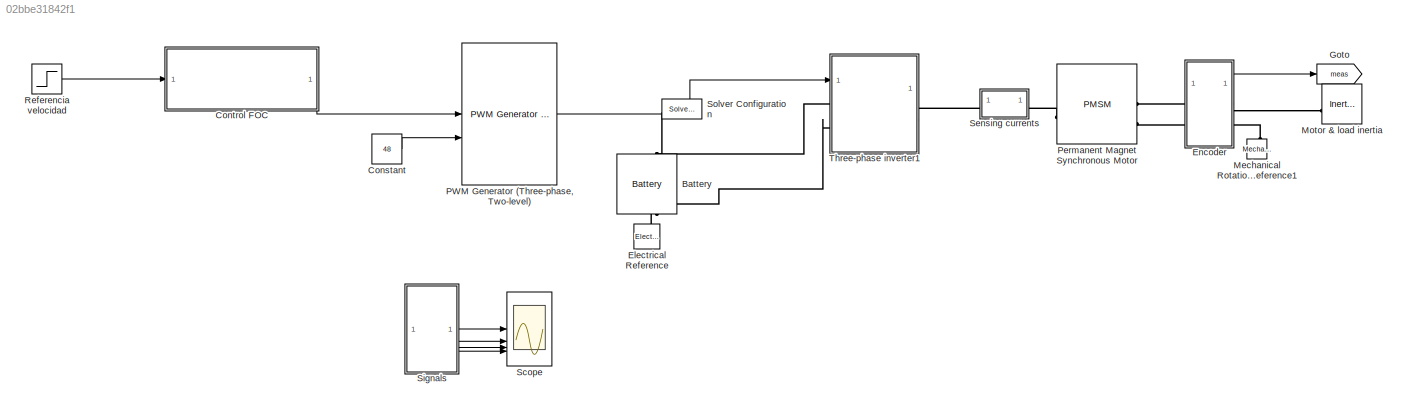
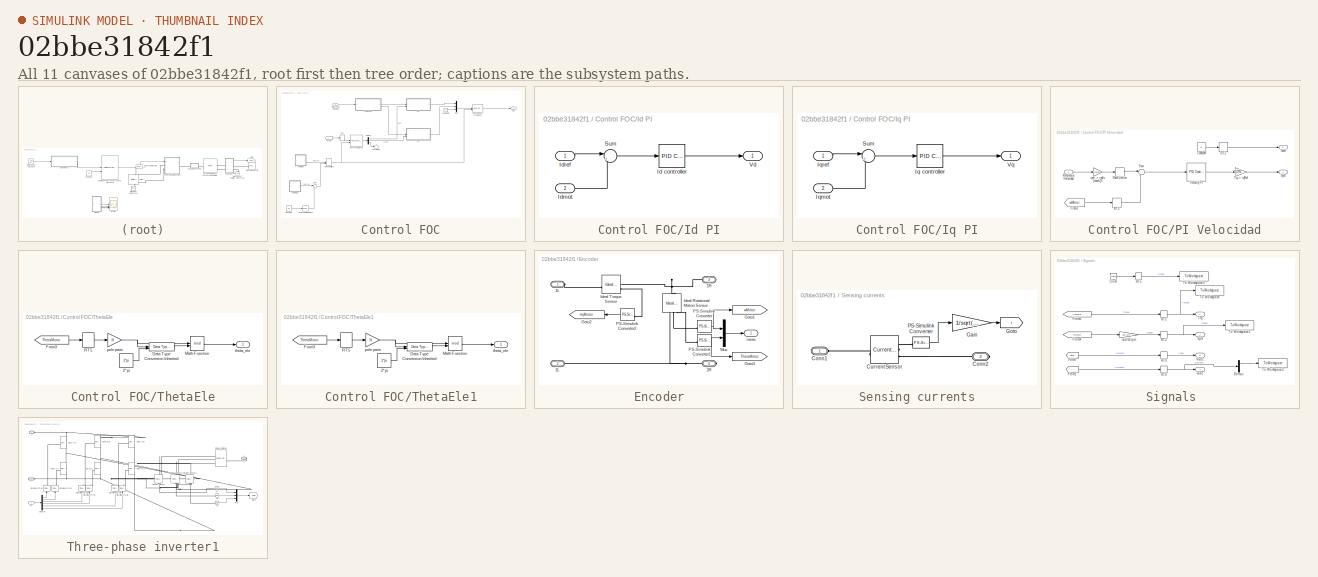
[diagram: thumbnail index - all 11 canvases of the model, root first then tree order]
MODEL slx_02bbe31842f1
KIND model
CONFIG AbsTol = 1e-3
CONFIG EnableMultiTasking = on
CONFIG FixedStep = Ts
CONFIG MaxStep = 1e-5
CONFIG MinStep = auto
CONFIG PreLoadFcn = % PMSM parameters \nPM = 0.03; % Permanent magnet flux linkage\nLd = 2e-4;  % d-axis inductance\nLq = 2e-4;  % q-axis inductance\nL0 = 2e-4;  % 0-axis inductance\nRs = 0.013; % Stator resistance\nN = 6; % Number of pole pairs\nJ = 0.2; % Moment of inertia\n\n% Operating and derived limits\nImax = 100;  % Max stator current (peak value)\nTmax = 1.5*N*PM*Imax; % Max lectromagnetic torque\nfnom = 100;  % Nominal...<+172ch>
CONFIG RelTol = 1e-3
CONFIG SampleTimeConstraint = Unconstrained
CONFIG SolverName = VariableStepAuto
CONFIG StartTime = 0.0
CONFIG StopFcn = ee_addSimlogTimeStamp(bdroot)
CONFIG StopTime = 0.7
BLOCK [Reference] Battery  REF=batteryecm_lib/Battery
  NameLocation = right
  SourceBlock = batteryecm_lib/Battery
  SourceType = Battery
BLOCK [Constant] Constant
  Value = 48
BLOCK [SubSystem] Control FOC
BLOCK [Constant] Control FOC/Constant
  Value = 89
BLOCK [Constant] Control FOC/Constant1
  SampleTime = Tcurr
  Value = 0
BLOCK [Reference] Control FOC/Degrees to Radians  REF=simulink_extras/Transformations/Degrees to
Radians
  SourceBlock = simulink_extras/Transformations/Degrees to\nRadians
  SourceType = DegreesToRadians
BLOCK [Demux] Control FOC/Demux
  Outputs = 3
BLOCK [From] Control FOC/From2
  GotoTag = i
  TagVisibility = global
BLOCK [SubSystem] Control FOC/Id PI
BLOCK [Reference] Control FOC/Id PI/Id controller  REF=slpidlib/PID Controller
  LibrarySourceBlock = simulink/Continuous/PID Controller
  SourceBlock = slpidlib/PID Controller
  SourceType = PID 1dof
BLOCK [Inport] Control FOC/Id PI/Idmot
  Port = 2
BLOCK [Inport] Control FOC/Id PI/Idref
BLOCK [Sum] Control FOC/Id PI/Sum
  Inputs = |+-
BLOCK [Outport] Control FOC/Id PI/Vd
BLOCK [Reference] Control FOC/Inverse Park Transform  REF=eeTransforms/Inverse
Park Transform
  SourceBlock = eeTransforms/Inverse\nPark Transform
  SourceType = Inverse Park Transform
BLOCK [SubSystem] Control FOC/Iq PI
BLOCK [Reference] Control FOC/Iq PI/Iq controller  REF=slpidlib/PID Controller
  LibrarySourceBlock = simulink/Continuous/PID Controller
  SourceBlock = slpidlib/PID Controller
  SourceType = PID 1dof
BLOCK [Inport] Control FOC/Iq PI/Iqmot
  Port = 2
BLOCK [Inport] Control FOC/Iq PI/Iqref
BLOCK [Sum] Control FOC/Iq PI/Sum
  Inputs = |+-
BLOCK [Outport] Control FOC/Iq PI/Vq
BLOCK [ManualSwitch] Control FOC/Manual Switch
BLOCK [Mux] Control FOC/Mux
  DisplayOption = bar
  Inputs = 3
BLOCK [SubSystem] Control FOC/PI Velocidad
BLOCK [Constant] Control FOC/PI Velocidad/Constant
  Value = 0
BLOCK [From] Control FOC/PI Velocidad/From2
  GotoTag = wMotor
  TagVisibility = global
BLOCK [Outport] Control FOC/PI Velocidad/Idref
BLOCK [Outport] Control FOC/PI Velocidad/Iqref
  Port = 2
BLOCK [RateTransition] Control FOC/PI Velocidad/RT2
  NameLocation = top
  OutPortSampleTime = Tspeed
BLOCK [RateTransition] Control FOC/PI Velocidad/RT3
  NameLocation = top
  OutPortSampleTime = Tspeed
BLOCK [RateLimiter] Control FOC/PI Velocidad/Rate Limiter
  FallingSlewLimit = -Tmax/J
  NameLocation = top
  RisingSlewLimit = Tmax/J
  SampleTimeMode = inherited
BLOCK [Inport] Control FOC/PI Velocidad/Referencia Velocidad
BLOCK [Sum] Control FOC/PI Velocidad/Sum
  Inputs = |+-
BLOCK [Gain] Control FOC/PI Velocidad/Tq--> iqRef
  Gain = 2/(3*N*PM)
BLOCK [Reference] Control FOC/PI Velocidad/Velocity PI  REF=slpidlib/PID Controller
  LibrarySourceBlock = simulink/Continuous/PID Controller
  SourceBlock = slpidlib/PID Controller
  SourceType = PID 1dof
BLOCK [Gain] Control FOC/PI Velocidad/rpm -> rad//s [mech.]1
  Gain = 2*pi/60
  NameLocation = top
BLOCK [Reference] Control FOC/Park Transform1  REF=eeTransforms/Park Transform
  LibrarySourceBlock = ee_sl_lib/Mathematical\nTransforms/Park Transform
  SourceBlock = eeTransforms/Park Transform
  SourceType = Park Transform
BLOCK [RateTransition] Control FOC/RT4
  NameLocation = top
  OutPortSampleTime = Tspeed
BLOCK [Inport] Control FOC/Referencia Velocidad
BLOCK [Sum] Control FOC/Sum
  Inputs = |++
BLOCK [Terminator] Control FOC/Terminator
BLOCK [SubSystem] Control FOC/ThetaEle
BLOCK [Constant] Control FOC/ThetaEle/2*pi
  OutDataTypeStr = Inherit: Inherit via back propagation
  SampleTime = 2e-4
  Value = 2*pi
BLOCK [Reference] Control FOC/ThetaEle/Data Type Conversion Inherited  REF=simulink/Signal
Attributes/Data Type
Conversion
Inherited
  SourceBlock = simulink/Signal\nAttributes/Data Type\nConversion\nInherited
  SourceType = Conversion Inherited
BLOCK [From] Control FOC/ThetaEle/From3
  GotoTag = ThetaMotor
  TagVisibility = global
BLOCK [Math] Control FOC/ThetaEle/Math Function
  Operator = mod
  SignedPower = on
BLOCK [RateTransition] Control FOC/ThetaEle/RT5
  NameLocation = top
  OutPortSampleTime = Tspeed
BLOCK [Gain] Control FOC/ThetaEle/pole pairs 
  Gain = N
BLOCK [Outport] Control FOC/ThetaEle/theta_ele
  VectorParamsAs1DForOutWhenUnconnected = off
BLOCK [SubSystem] Control FOC/ThetaEle1
BLOCK [Constant] Control FOC/ThetaEle1/2*pi
  OutDataTypeStr = Inherit: Inherit via back propagation
  SampleTime = 2e-4
  Value = 2*pi
BLOCK [Reference] Control FOC/ThetaEle1/Data Type Conversion Inherited  REF=simulink/Signal
Attributes/Data Type
Conversion
Inherited
  SourceBlock = simulink/Signal\nAttributes/Data Type\nConversion\nInherited
  SourceType = Conversion Inherited
BLOCK [From] Control FOC/ThetaEle1/From3
  GotoTag = ThetaMotor
  TagVisibility = global
BLOCK [Math] Control FOC/ThetaEle1/Math Function
  Operator = mod
  SignedPower = on
BLOCK [RateTransition] Control FOC/ThetaEle1/RT5
  NameLocation = top
  OutPortSampleTime = Tspeed
BLOCK [Gain] Control FOC/ThetaEle1/pole pairs 
  Gain = N
BLOCK [Outport] Control FOC/ThetaEle1/theta_ele
  VectorParamsAs1DForOutWhenUnconnected = off
BLOCK [Outport] Control FOC/abc
BLOCK [Reference] Electrical Reference  REF=fl_lib/Electrical/Electrical Elements/Electrical Reference
  NameLocation = right
  SourceBlock = fl_lib/Electrical/Electrical Elements/Electrical Reference
  SourceType = Electrical Reference
BLOCK [SubSystem] Encoder
BLOCK [PMIOPort] Encoder/1L
  Side = Left
BLOCK [PMIOPort] Encoder/1R
  Port = 3
  Side = Right
BLOCK [PMIOPort] Encoder/2L
  Port = 2
  Side = Left
BLOCK [PMIOPort] Encoder/2R
  Port = 4
  Side = Right
BLOCK [Goto] Encoder/Goto1
  GotoTag = wMotor
  NameLocation = top
  TagVisibility = global
BLOCK [Goto] Encoder/Goto2
  GotoTag = trqMotor
  TagVisibility = global
BLOCK [Goto] Encoder/Goto3
  GotoTag = ThetaMotor
  NameLocation = top
  TagVisibility = global
BLOCK [Reference] Encoder/Ideal Rotational Motion Sensor  REF=fl_lib/Mechanical/Mechanical Sensors/Ideal Rotational
Motion Sensor
  NameLocation = right
  SourceBlock = fl_lib/Mechanical/Mechanical Sensors/Ideal Rotational\nMotion Sensor
  SourceType = Ideal Rotational\nMotion Sensor
BLOCK [Reference] Encoder/Ideal Torque Sensor  REF=fl_lib/Mechanical/Mechanical Sensors/Ideal Torque Sensor
  SourceBlock = fl_lib/Mechanical/Mechanical Sensors/Ideal Torque Sensor
  SourceType = Ideal Torque Sensor
BLOCK [Mux] Encoder/Mux
  DisplayOption = bar
  Inputs = 2
BLOCK [Reference] Encoder/PS-Simulink Converter  REF=nesl_utility/PS-Simulink
Converter
  SourceBlock = nesl_utility/PS-Simulink\nConverter
  SourceType = PS-Simulink\nConverter
BLOCK [Reference] Encoder/PS-Simulink Converter1  REF=nesl_utility/PS-Simulink
Converter
  SourceBlock = nesl_utility/PS-Simulink\nConverter
  SourceType = PS-Simulink\nConverter
BLOCK [Reference] Encoder/PS-Simulink Converter2  REF=nesl_utility/PS-Simulink
Converter
  NameLocation = top
  SourceBlock = nesl_utility/PS-Simulink\nConverter
  SourceType = PS-Simulink\nConverter
BLOCK [Outport] Encoder/meas
  VectorParamsAs1DForOutWhenUnconnected = off
BLOCK [Goto] Goto
  GotoTag = meas
  TagVisibility = global
BLOCK [Reference] Mechanical Rotational Reference1  REF=fl_lib/Mechanical/Rotational Elements/Mechanical
Rotational Reference
  NameLocation = right
  SourceBlock = fl_lib/Mechanical/Rotational Elements/Mechanical\nRotational Reference
  SourceType = Mechanical\nRotational Reference
BLOCK [Reference] Motor & load inertia  REF=fl_lib/Mechanical/Rotational Elements/Inertia
  SourceBlock = fl_lib/Mechanical/Rotational Elements/Inertia
  SourceType = Inertia
BLOCK [Reference] PWM Generator (Three-phase, Two-level)  REF=eePwmGeneratorTwoLevel/PWM Generator
(Three-phase, Two-level)
  LibrarySourceBlock = eePmsmFieldOrientedControl/PMSM Field-Oriented\nControl/PWM/PWM Generator\n(Three-phase, Two-level)
  SourceBlock = eePwmGeneratorTwoLevel/PWM Generator\n(Three-phase, Two-level)
  SourceType = PWM Generator (three-phase, two-level)
BLOCK [Reference] Permanent Magnet Synchronous Motor  REF=ee_lib/Electromechanical/Permanent Magnet/PMSM
  SourceBlock = ee_lib/Electromechanical/Permanent Magnet/PMSM
  SourceType = PMSM
BLOCK [Step] Referencia velocidad
  After = Refvel
  SampleTime = Tspeed
  Time = 0.1
BLOCK [Scope] Scope
  Floating = off
  NumInputPorts = 4
  ScopeSpecificationString = Simulink.scopes.TimeScopeBlockCfg('CurrentConfiguration', extmgr.ConfigurationSet(extmgr.Configuration('Core','General UI',true),extmgr.Configuration('Core','Source UI',true),extmgr.Configuration('Sources','WiredSimulink',true),extmgr.Configuration('Visuals','Time Domain',true,'SerializedDisplays',{struct('MinYLimReal','-19.78525','MaxYLimReal','130.89708','YLabelReal','','MinYLimMag','0.00000','M...<+3743ch>
BLOCK [SubSystem] Sensing currents
BLOCK [PMIOPort] Sensing currents/Conn1
  Side = Left
BLOCK [PMIOPort] Sensing currents/Conn2
  Port = 2
  Side = Right
BLOCK [Reference] Sensing currents/Current Sensor  REF=ee_lib/Sensors &
Transducers/Current Sensor
(Three-Phase)
  SourceBlock = ee_lib/Sensors &\nTransducers/Current Sensor\n(Three-Phase)
  SourceType = Current Sensor\n(Three-Phase)
BLOCK [Gain] Sensing currents/Gain
  Commented = through
  Gain = 1/sqrt(3)
BLOCK [Goto] Sensing currents/Goto
  GotoTag = i
  TagVisibility = global
BLOCK [Reference] Sensing currents/PS-Simulink Converter  REF=nesl_utility/PS-Simulink
Converter
  SourceBlock = nesl_utility/PS-Simulink\nConverter
  SourceType = PS-Simulink\nConverter
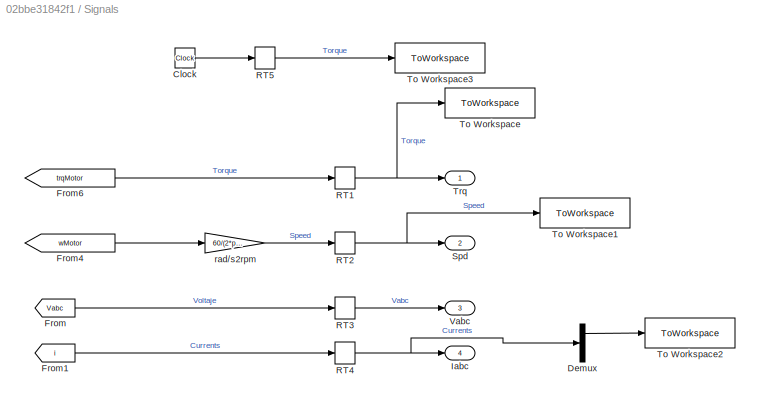
BLOCK [SubSystem] Signals 
BLOCK [Clock] Signals /Clock
  Decimation = 3
BLOCK [Demux] Signals /Demux
  Outputs = 3
BLOCK [From] Signals /From
  GotoTag = Vabc
  TagVisibility = global
BLOCK [From] Signals /From1
  GotoTag = i
  TagVisibility = global
BLOCK [From] Signals /From4
  GotoTag = wMotor
  TagVisibility = global
BLOCK [From] Signals /From6
  GotoTag = trqMotor
  TagVisibility = global
BLOCK [Outport] Signals /Iabc
  Port = 4
  VectorParamsAs1DForOutWhenUnconnected = off
BLOCK [RateTransition] Signals /RT1
  OutPortSampleTime = Ts
BLOCK [RateTransition] Signals /RT2
  OutPortSampleTime = Ts
BLOCK [RateTransition] Signals /RT3
  OutPortSampleTime = Ts
BLOCK [RateTransition] Signals /RT4
  OutPortSampleTime = Ts
BLOCK [RateTransition] Signals /RT5
  OutPortSampleTime = Ts
BLOCK [Outport] Signals /Spd
  Port = 2
  VectorParamsAs1DForOutWhenUnconnected = off
BLOCK [ToWorkspace] Signals /To Workspace
  Decimation = 3
  FixptAsFi = on
  MaxDataPoints = inf
  SampleTime = -1
  VariableName = Par
BLOCK [ToWorkspace] Signals /To Workspace1
  Decimation = 3
  FixptAsFi = on
  MaxDataPoints = inf
  SampleTime = -1
  VariableName = Velocidad
BLOCK [ToWorkspace] Signals /To Workspace2
  Decimation = 3
  FixptAsFi = on
  MaxDataPoints = inf
  SampleTime = -1
  VariableName = Ia
BLOCK [ToWorkspace] Signals /To Workspace3
  Decimation = 3
  FixptAsFi = on
  MaxDataPoints = inf
  SampleTime = -1
  VariableName = Time
BLOCK [Outport] Signals /Trq
  VectorParamsAs1DForOutWhenUnconnected = off
BLOCK [Outport] Signals /Vabc
  Port = 3
  VectorParamsAs1DForOutWhenUnconnected = off
BLOCK [Gain] Signals /rad//s2rpm
  Gain = 60/(2*pi)
BLOCK [Reference] Solver Configuration  REF=nesl_utility/Solver
Configuration
  SourceBlock = nesl_utility/Solver\nConfiguration
  SourceType = Solver\nConfiguration
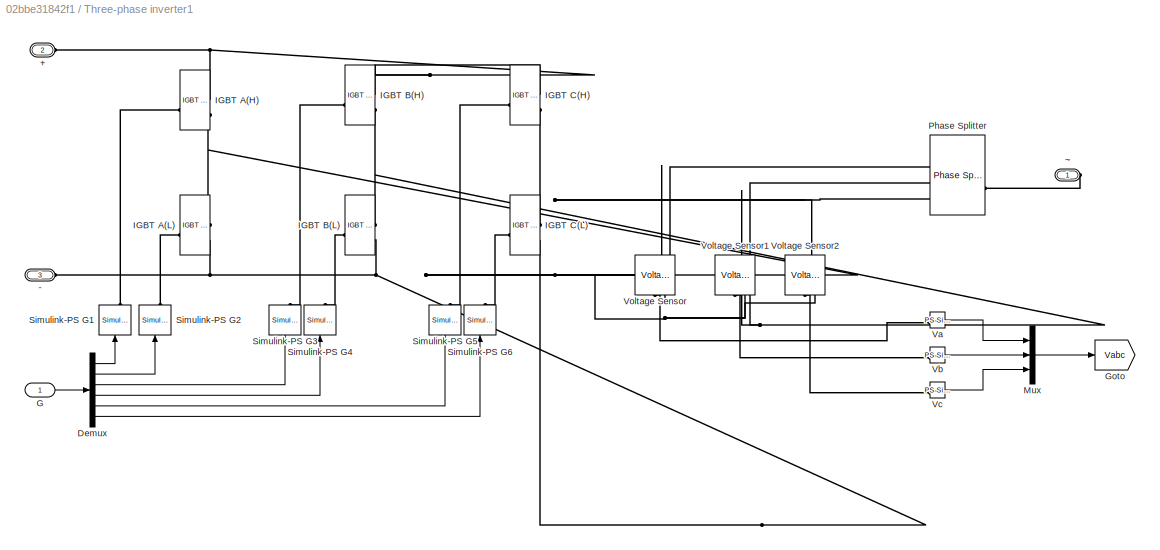
BLOCK [SubSystem] Three-phase inverter1
BLOCK [PMIOPort] Three-phase inverter1/+
  Port = 2
  Side = Left
  Tag = PMCPort
BLOCK [PMIOPort] Three-phase inverter1/-
  Port = 3
  Side = Left
  Tag = PMCPort
BLOCK [Demux] Three-phase inverter1/Demux
  Outputs = 6
BLOCK [Inport] Three-phase inverter1/G
BLOCK [Goto] Three-phase inverter1/Goto
  GotoTag = Vabc
  TagVisibility = global
BLOCK [Reference] Three-phase inverter1/IGBT A(H)  REF=ee_lib/Semiconductors &
Converters/IGBT
(Ideal,
Switching)
  SourceBlock = ee_lib/Semiconductors &\nConverters/IGBT\n(Ideal,\nSwitching)
  SourceType = IGBT\n(Ideal,\nSwitching)
BLOCK [Reference] Three-phase inverter1/IGBT A(L)  REF=ee_lib/Semiconductors &
Converters/IGBT
(Ideal,
Switching)
  SourceBlock = ee_lib/Semiconductors &\nConverters/IGBT\n(Ideal,\nSwitching)
  SourceType = IGBT\n(Ideal,\nSwitching)
BLOCK [Reference] Three-phase inverter1/IGBT B(H)  REF=ee_lib/Semiconductors &
Converters/IGBT
(Ideal,
Switching)
  SourceBlock = ee_lib/Semiconductors &\nConverters/IGBT\n(Ideal,\nSwitching)
  SourceType = IGBT\n(Ideal,\nSwitching)
BLOCK [Reference] Three-phase inverter1/IGBT B(L)  REF=ee_lib/Semiconductors &
Converters/IGBT
(Ideal,
Switching)
  SourceBlock = ee_lib/Semiconductors &\nConverters/IGBT\n(Ideal,\nSwitching)
  SourceType = IGBT\n(Ideal,\nSwitching)
BLOCK [Reference] Three-phase inverter1/IGBT C(H)  REF=ee_lib/Semiconductors &
Converters/IGBT
(Ideal,
Switching)
  SourceBlock = ee_lib/Semiconductors &\nConverters/IGBT\n(Ideal,\nSwitching)
  SourceType = IGBT\n(Ideal,\nSwitching)
BLOCK [Reference] Three-phase inverter1/IGBT C(L)  REF=ee_lib/Semiconductors &
Converters/IGBT
(Ideal,
Switching)
  SourceBlock = ee_lib/Semiconductors &\nConverters/IGBT\n(Ideal,\nSwitching)
  SourceType = IGBT\n(Ideal,\nSwitching)
BLOCK [Mux] Three-phase inverter1/Mux
  DisplayOption = bar
  Inputs = 3
BLOCK [Reference] Three-phase inverter1/Phase Splitter  REF=ee_lib/Connectors &
References/Phase Splitter
  SourceBlock = ee_lib/Connectors &\nReferences/Phase Splitter
  SourceType = Phase Splitter
BLOCK [Reference] Three-phase inverter1/Simulink-PS G1  REF=nesl_utility/Simulink-PS
Converter
  NameLocation = right
  SourceBlock = nesl_utility/Simulink-PS\nConverter
  SourceType = Simulink-PS\nConverter
BLOCK [Reference] Three-phase inverter1/Simulink-PS G2  REF=nesl_utility/Simulink-PS
Converter
  NameLocation = right
  SourceBlock = nesl_utility/Simulink-PS\nConverter
  SourceType = Simulink-PS\nConverter
BLOCK [Reference] Three-phase inverter1/Simulink-PS G3  REF=nesl_utility/Simulink-PS
Converter
  NameLocation = left
  SourceBlock = nesl_utility/Simulink-PS\nConverter
  SourceType = Simulink-PS\nConverter
BLOCK [Reference] Three-phase inverter1/Simulink-PS G4  REF=nesl_utility/Simulink-PS
Converter
  NameLocation = right
  SourceBlock = nesl_utility/Simulink-PS\nConverter
  SourceType = Simulink-PS\nConverter
BLOCK [Reference] Three-phase inverter1/Simulink-PS G5  REF=nesl_utility/Simulink-PS
Converter
  NameLocation = right
  SourceBlock = nesl_utility/Simulink-PS\nConverter
  SourceType = Simulink-PS\nConverter
BLOCK [Reference] Three-phase inverter1/Simulink-PS G6  REF=nesl_utility/Simulink-PS
Converter
  NameLocation = right
  SourceBlock = nesl_utility/Simulink-PS\nConverter
  SourceType = Simulink-PS\nConverter
BLOCK [Reference] Three-phase inverter1/Va  REF=nesl_utility/PS-Simulink
Converter
  SourceBlock = nesl_utility/PS-Simulink\nConverter
  SourceType = PS-Simulink\nConverter
BLOCK [Reference] Three-phase inverter1/Vb  REF=nesl_utility/PS-Simulink
Converter
  SourceBlock = nesl_utility/PS-Simulink\nConverter
  SourceType = PS-Simulink\nConverter
BLOCK [Reference] Three-phase inverter1/Vc  REF=nesl_utility/PS-Simulink
Converter
  SourceBlock = nesl_utility/PS-Simulink\nConverter
  SourceType = PS-Simulink\nConverter
BLOCK [Reference] Three-phase inverter1/Voltage Sensor  REF=fl_lib/Electrical/Electrical Sensors/Voltage Sensor
  NameLocation = right
  SourceBlock = fl_lib/Electrical/Electrical Sensors/Voltage Sensor
  SourceType = Voltage Sensor
BLOCK [Reference] Three-phase inverter1/Voltage Sensor1  REF=fl_lib/Electrical/Electrical Sensors/Voltage Sensor
  NameLocation = right
  SourceBlock = fl_lib/Electrical/Electrical Sensors/Voltage Sensor
  SourceType = Voltage Sensor
BLOCK [Reference] Three-phase inverter1/Voltage Sensor2  REF=fl_lib/Electrical/Electrical Sensors/Voltage Sensor
  NameLocation = right
  SourceBlock = fl_lib/Electrical/Electrical Sensors/Voltage Sensor
  SourceType = Voltage Sensor
BLOCK [PMIOPort] Three-phase inverter1/~
  Side = Right
  Tag = PMCPort
LINE Constant:1 -> PWM Generator (Three-phase, Two-level):2
LINE Control FOC/Constant1:1 -> Control FOC/Mux:3
LINE Control FOC/Constant:1 -> Control FOC/Degrees to Radians:1
LINE Control FOC/Degrees to Radians:1 -> Control FOC/Sum:2
LINE Control FOC/Demux:1 -> Control FOC/Id PI:2
LINE Control FOC/Demux:2 -> Control FOC/Iq PI:2
LINE Control FOC/Demux:3 -> Control FOC/Terminator:1
LINE Control FOC/From2:1 -> Control FOC/RT4:1
LINE Control FOC/Id PI/Id controller:1 -> Control FOC/Id PI/Vd:1
LINE Control FOC/Id PI/Idmot:1 -> Control FOC/Id PI/Sum:2
LINE Control FOC/Id PI/Idref:1 -> Control FOC/Id PI/Sum:1
LINE Control FOC/Id PI/Sum:1 -> Control FOC/Id PI/Id controller:1
LINE Control FOC/Id PI:1 -> Control FOC/Mux:1
LINE Control FOC/Inverse Park Transform:1 -> Control FOC/abc:1
LINE Control FOC/Iq PI/Iq controller:1 -> Control FOC/Iq PI/Vq:1
LINE Control FOC/Iq PI/Iqmot:1 -> Control FOC/Iq PI/Sum:2
LINE Control FOC/Iq PI/Iqref:1 -> Control FOC/Iq PI/Sum:1
LINE Control FOC/Iq PI/Sum:1 -> Control FOC/Iq PI/Iq controller:1
LINE Control FOC/Iq PI:1 -> Control FOC/Mux:2
NET Control FOC/Manual Switch:1 -> Control FOC/Inverse Park Transform:2, Control FOC/Park Transform1:2
LINE Control FOC/Mux:1 -> Control FOC/Inverse Park Transform:1
LINE Control FOC/PI Velocidad/Constant:1 -> Control FOC/PI Velocidad/RT2:1
LINE Control FOC/PI Velocidad/From2:1 -> Control FOC/PI Velocidad/RT3:1
LINE Control FOC/PI Velocidad/RT2:1 -> Control FOC/PI Velocidad/Idref:1
LINE Control FOC/PI Velocidad/RT3:1 -> Control FOC/PI Velocidad/Sum:2
LINE Control FOC/PI Velocidad/Rate Limiter:1 -> Control FOC/PI Velocidad/Sum:1
LINE Control FOC/PI Velocidad/Referencia Velocidad:1 -> Control FOC/PI Velocidad/rpm -> rad//s [mech.]1:1
LINE Control FOC/PI Velocidad/Sum:1 -> Control FOC/PI Velocidad/Velocity PI:1
LINE Control FOC/PI Velocidad/Tq--> iqRef:1 -> Control FOC/PI Velocidad/Iqref:1
LINE Control FOC/PI Velocidad/Velocity PI:1 -> Control FOC/PI Velocidad/Tq--> iqRef:1
LINE Control FOC/PI Velocidad/rpm -> rad//s [mech.]1:1 -> Control FOC/PI Velocidad/Rate Limiter:1
LINE Control FOC/PI Velocidad:1 -> Control FOC/Id PI:1
LINE Control FOC/PI Velocidad:2 -> Control FOC/Iq PI:1
LINE Control FOC/Park Transform1:1 -> Control FOC/Demux:1
LINE Control FOC/RT4:1 -> Control FOC/Park Transform1:1
LINE Control FOC/Referencia Velocidad:1 -> Control FOC/PI Velocidad:1
LINE Control FOC/Sum:1 -> Control FOC/Manual Switch:2
LINE Control FOC/ThetaEle/2*pi:1 -> Control FOC/ThetaEle/Data Type Conversion Inherited:2
LINE Control FOC/ThetaEle/Data Type Conversion Inherited:1 -> Control FOC/ThetaEle/Math Function:2
LINE Control FOC/ThetaEle/From3:1 -> Control FOC/ThetaEle/RT5:1
LINE Control FOC/ThetaEle/Math Function:1 -> Control FOC/ThetaEle/theta_ele:1
LINE Control FOC/ThetaEle/RT5:1 -> Control FOC/ThetaEle/pole pairs :1
NET Control FOC/ThetaEle/pole pairs :1 -> Control FOC/ThetaEle/Data Type Conversion Inherited:1, Control FOC/ThetaEle/Math Function:1
LINE Control FOC/ThetaEle1/2*pi:1 -> Control FOC/ThetaEle1/Data Type Conversion Inherited:2
LINE Control FOC/ThetaEle1/Data Type Conversion Inherited:1 -> Control FOC/ThetaEle1/Math Function:2
LINE Control FOC/ThetaEle1/From3:1 -> Control FOC/ThetaEle1/RT5:1
LINE Control FOC/ThetaEle1/Math Function:1 -> Control FOC/ThetaEle1/theta_ele:1
LINE Control FOC/ThetaEle1/RT5:1 -> Control FOC/ThetaEle1/pole pairs :1
NET Control FOC/ThetaEle1/pole pairs :1 -> Control FOC/ThetaEle1/Data Type Conversion Inherited:1, Control FOC/ThetaEle1/Math Function:1
LINE Control FOC/ThetaEle1:1 -> Control FOC/Sum:1
LINE Control FOC/ThetaEle:1 -> Control FOC/Manual Switch:1
LINE Control FOC:1 -> PWM Generator (Three-phase, Two-level):1
LINE Encoder/Mux:1 -> Encoder/meas:1
NET Encoder/PS-Simulink Converter1:1 -> Encoder/Goto3:1, Encoder/Mux:2
LINE Encoder/PS-Simulink Converter2:1 -> Encoder/Goto2:1
NET Encoder/PS-Simulink Converter:1 -> Encoder/Goto1:1, Encoder/Mux:1
LINE Encoder:1 -> Goto:1
LINE PWM Generator (Three-phase, Two-level):1 -> Three-phase inverter1:1
LINE Referencia velocidad:1 -> Control FOC:1
LINE Sensing currents/Gain:1 -> Sensing currents/Goto:1
LINE Sensing currents/PS-Simulink Converter:1 -> Sensing currents/Gain:1
LINE Signals /Clock:1 -> Signals /RT5:1
LINE Signals /Demux:1 -> Signals /To Workspace2:1
LINE Signals /From1:1 -> Signals /RT4:1
LINE Signals /From4:1 -> Signals /rad//s2rpm:1
LINE Signals /From6:1 -> Signals /RT1:1
LINE Signals /From:1 -> Signals /RT3:1
NET Signals /RT1:1 -> Signals /To Workspace:1, Signals /Trq:1
NET Signals /RT2:1 -> Signals /Spd:1, Signals /To Workspace1:1
LINE Signals /RT3:1 -> Signals /Vabc:1
NET Signals /RT4:1 -> Signals /Demux:1, Signals /Iabc:1
LINE Signals /RT5:1 -> Signals /To Workspace3:1
LINE Signals /rad//s2rpm:1 -> Signals /RT2:1
LINE Signals :1 -> Scope:1
LINE Signals :2 -> Scope:2
LINE Signals :3 -> Scope:3
LINE Signals :4 -> Scope:4
LINE Three-phase inverter1/Demux:1 -> Three-phase inverter1/Simulink-PS G1:1
LINE Three-phase inverter1/Demux:2 -> Three-phase inverter1/Simulink-PS G2:1
LINE Three-phase inverter1/Demux:3 -> Three-phase inverter1/Simulink-PS G3:1
LINE Three-phase inverter1/Demux:4 -> Three-phase inverter1/Simulink-PS G4:1
LINE Three-phase inverter1/Demux:5 -> Three-phase inverter1/Simulink-PS G5:1
LINE Three-phase inverter1/Demux:6 -> Three-phase inverter1/Simulink-PS G6:1
LINE Three-phase inverter1/G:1 -> Three-phase inverter1/Demux:1
LINE Three-phase inverter1/Mux:1 -> Three-phase inverter1/Goto:1
LINE Three-phase inverter1/Va:1 -> Three-phase inverter1/Mux:1
LINE Three-phase inverter1/Vb:1 -> Three-phase inverter1/Mux:2
LINE Three-phase inverter1/Vc:1 -> Three-phase inverter1/Mux:3
PNET net1: Battery:LConn1 -- Solver Configuration:RConn1 -- Three-phase inverter1:LConn1
PNET net2: Battery:RConn1 -- Electrical Reference:LConn1 -- Three-phase inverter1:LConn2
PLINE Encoder/1L:RConn1 -- Encoder/Ideal Torque Sensor:LConn1
PNET net3: Encoder/1R:RConn1 -- Encoder/Ideal Rotational Motion Sensor:LConn1 -- Encoder/Ideal Torque Sensor:RConn1
PNET net4: Encoder/2L:RConn1 -- Encoder/2R:RConn1 -- Encoder/Ideal Rotational Motion Sensor:RConn1
PLINE Encoder/Ideal Rotational Motion Sensor:RConn2 -- Encoder/PS-Simulink Converter:LConn1
PLINE Encoder/Ideal Rotational Motion Sensor:RConn3 -- Encoder/PS-Simulink Converter1:LConn1
PLINE Encoder/Ideal Torque Sensor:RConn2 -- Encoder/PS-Simulink Converter2:LConn1
PLINE Encoder:LConn1 -- Permanent Magnet Synchronous Motor:RConn1
PLINE Encoder:LConn2 -- Permanent Magnet Synchronous Motor:RConn2
PLINE Encoder:RConn1 -- Motor & load inertia:LConn1
PLINE Encoder:RConn2 -- Mechanical Rotational Reference1:LConn1
PLINE Permanent Magnet Synchronous Motor:LConn1 -- Sensing currents:RConn1
PLINE Sensing currents/Conn1:RConn1 -- Sensing currents/Current Sensor:LConn1
PLINE Sensing currents/Conn2:RConn1 -- Sensing currents/Current Sensor:RConn2
PLINE Sensing currents/Current Sensor:RConn1 -- Sensing currents/PS-Simulink Converter:LConn1
PLINE Sensing currents:LConn1 -- Three-phase inverter1:RConn1
PNET net5: Three-phase inverter1/+:RConn1 -- Three-phase inverter1/IGBT A(H):RConn1 -- Three-phase inverter1/IGBT B(H):RConn1 -- Three-phase inverter1/IGBT C(H):RConn1
PNET net6: Three-phase inverter1/-:RConn1 -- Three-phase inverter1/IGBT A(L):RConn2 -- Three-phase inverter1/IGBT B(L):RConn2 -- Three-phase inverter1/IGBT C(L):RConn2 -- Three-phase inverter1/Voltage Sensor1:RConn2 -- Three-phase inverter1/Voltage Sensor2:RConn2 -- Three-phase inverter1/Voltage Sensor:RConn2
PLINE Three-phase inverter1/IGBT A(H):LConn1 -- Three-phase inverter1/Simulink-PS G1:RConn1
PNET net7: Three-phase inverter1/IGBT A(H):RConn2 -- Three-phase inverter1/IGBT A(L):RConn1 -- Three-phase inverter1/Phase Splitter:RConn1 -- Three-phase inverter1/Voltage Sensor:LConn1
PLINE Three-phase inverter1/IGBT A(L):LConn1 -- Three-phase inverter1/Simulink-PS G2:RConn1
PLINE Three-phase inverter1/IGBT B(H):LConn1 -- Three-phase inverter1/Simulink-PS G3:RConn1
PNET net8: Three-phase inverter1/IGBT B(H):RConn2 -- Three-phase inverter1/IGBT B(L):RConn1 -- Three-phase inverter1/Phase Splitter:RConn2 -- Three-phase inverter1/Voltage Sensor1:LConn1
PLINE Three-phase inverter1/IGBT B(L):LConn1 -- Three-phase inverter1/Simulink-PS G4:RConn1
PLINE Three-phase inverter1/IGBT C(H):LConn1 -- Three-phase inverter1/Simulink-PS G5:RConn1
PNET net9: Three-phase inverter1/IGBT C(H):RConn2 -- Three-phase inverter1/IGBT C(L):RConn1 -- Three-phase inverter1/Phase Splitter:RConn3 -- Three-phase inverter1/Voltage Sensor2:LConn1
PLINE Three-phase inverter1/IGBT C(L):LConn1 -- Three-phase inverter1/Simulink-PS G6:RConn1
PLINE Three-phase inverter1/Phase Splitter:LConn1 -- Three-phase inverter1/~:RConn1
PLINE Three-phase inverter1/Va:LConn1 -- Three-phase inverter1/Voltage Sensor:RConn1
PLINE Three-phase inverter1/Vb:LConn1 -- Three-phase inverter1/Voltage Sensor1:RConn1
PLINE Three-phase inverter1/Vc:LConn1 -- Three-phase inverter1/Voltage Sensor2:RConn1
note: NET lines group one-source signal fan-out (src -> all destinations, sorted); 1:1 wires keep LINE; PNET lines group multi-terminal physical nets as a canonical sorted terminal list (undirected conserving connections); 2-terminal nets keep the pairwise PLINE form
